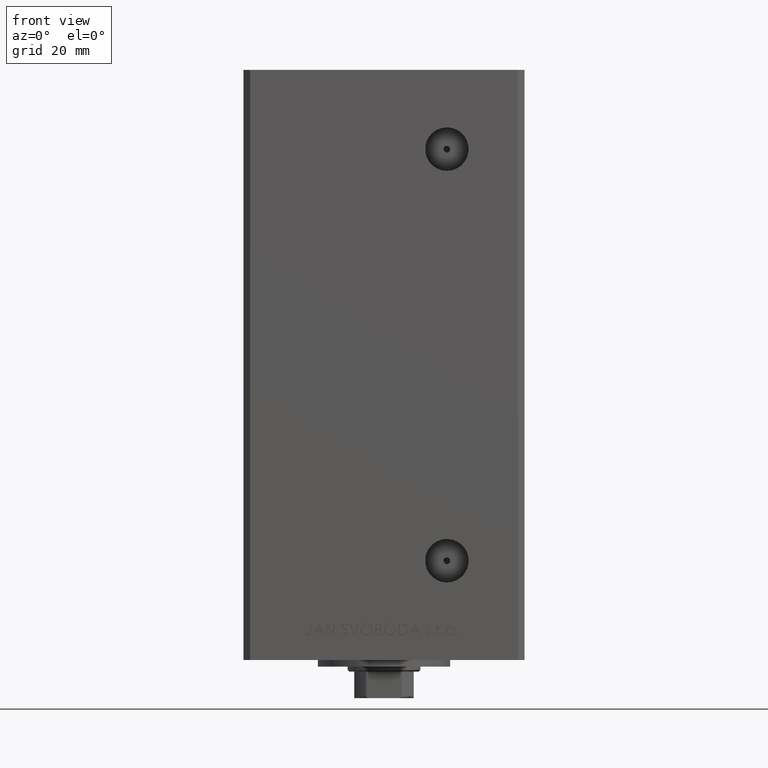
[diagram: clean part render]
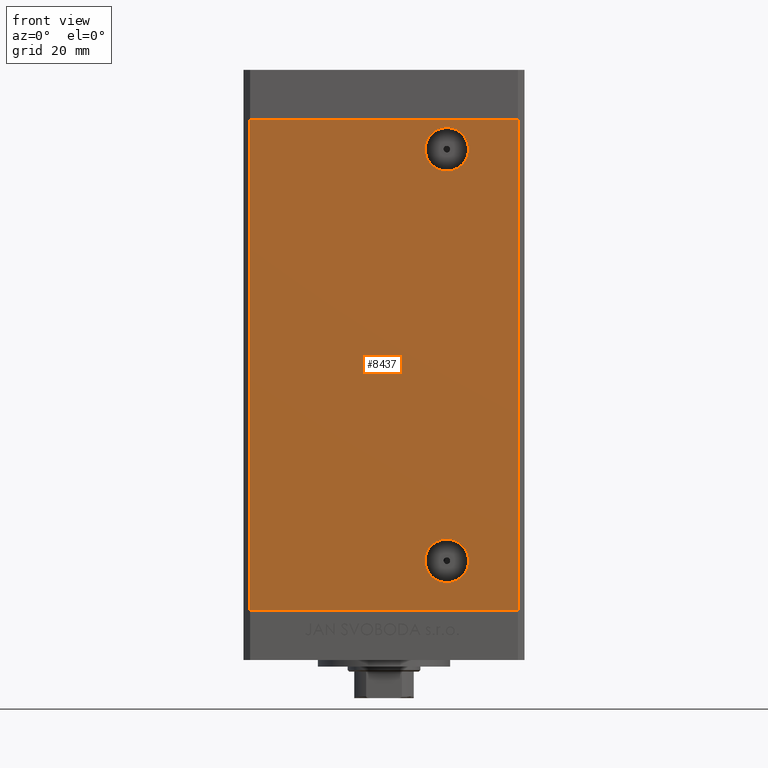
[diagram: same view with one face highlighted and labeled with its STEP entity id]
A machine part, front view. The second image highlights one B-rep face of the part: STEP entity #8437.
In plain terms, the highlighted planar face has unit normal (0, 1, 0).
Its self-contained STEP definition (entity closure, byte-faithful):
#414 = CIRCLE ( 'NONE', #12471, 6.580000000000002736 ) ;
#844 = LINE ( 'NONE', #16159, #16076 ) ;
#1201 = VECTOR ( 'NONE', #41686, 1000.000000000000000 ) ;
#1586 = ORIENTED_EDGE ( 'NONE', *, *, #8977, .F. ) ;
#2355 = AXIS2_PLACEMENT_3D ( 'NONE', #28119, #40413, #16530 ) ;
#2730 = CARTESIAN_POINT ( 'NONE',  ( -40.49999999999998579, -37.50000000000000711, 148.5000000000000000 ) ) ;
#3451 = EDGE_CURVE ( 'NONE', #41971, #46826, #24349, .T. ) ;
#4008 = ORIENTED_EDGE ( 'NONE', *, *, #27467, .T. ) ;
#4685 = EDGE_CURVE ( 'NONE', #25407, #29638, #49515, .T. ) ;
#4860 = ORIENTED_EDGE ( 'NONE', *, *, #27617, .T. ) ;
#5811 = EDGE_CURVE ( 'NONE', #25407, #14091, #33892, .T. ) ;
#6314 = CARTESIAN_POINT ( 'NONE',  ( 18.99999999999997513, -37.50000000000000711, 139.4999999999999716 ) ) ;
#7913 = DIRECTION ( 'NONE',  ( 0.000000000000000000, 0.000000000000000000, -1.000000000000000000 ) ) ;
#8437 = ADVANCED_FACE ( 'NONE', ( #40131, #33094, #21028 ), #48168, .F. ) ;
#8457 = CARTESIAN_POINT ( 'NONE',  ( 40.49999999999998579, -37.50000000000000711, 0.000000000000000000 ) ) ;
#8636 = CARTESIAN_POINT ( 'NONE',  ( 40.49999999999998579, -37.50000000000000711, 148.5000000000000000 ) ) ;
#8977 = EDGE_CURVE ( 'NONE', #14091, #15351, #46306, .T. ) ;
#11166 = CARTESIAN_POINT ( 'NONE',  ( -40.49999999999998579, -37.50000000000000711, 148.5000000000000000 ) ) ;
#12471 = AXIS2_PLACEMENT_3D ( 'NONE', #6314, #25665, #21639 ) ;
#13136 = CARTESIAN_POINT ( 'NONE',  ( 18.99999999999997513, -37.50000000000000711, 132.9199999999999875 ) ) ;
#13599 = DIRECTION ( 'NONE',  ( 0.000000000000000000, -1.000000000000000000, 0.000000000000000000 ) ) ;
#14091 = VERTEX_POINT ( 'NONE', #8636 ) ;
#15086 = DIRECTION ( 'NONE',  ( -0.000000000000000000, -0.000000000000000000, -1.000000000000000000 ) ) ;
#15351 = VERTEX_POINT ( 'NONE', #8457 ) ;
#16076 = VECTOR ( 'NONE', #31518, 1000.000000000000000 ) ;
#16159 = CARTESIAN_POINT ( 'NONE',  ( -40.49999999999998579, -37.50000000000000711, 0.000000000000000000 ) ) ;
#16530 = DIRECTION ( 'NONE',  ( 0.000000000000000000, 0.000000000000000000, -1.000000000000000000 ) ) ;
#17065 = ORIENTED_EDGE ( 'NONE', *, *, #4685, .T. ) ;
#17976 = DIRECTION ( 'NONE',  ( 0.000000000000000000, 1.000000000000000000, 0.000000000000000000 ) ) ;
#19208 = DIRECTION ( 'NONE',  ( -0.000000000000000000, 1.000000000000000000, -0.000000000000000000 ) ) ;
#19891 = EDGE_LOOP ( 'NONE', ( #4008, #35917 ) ) ;
#21001 = EDGE_CURVE ( 'NONE', #46826, #41971, #24026, .T. ) ;
#21028 = FACE_BOUND ( 'NONE', #19891, .T. ) ;
#21639 = DIRECTION ( 'NONE',  ( 0.000000000000000000, 0.000000000000000000, -1.000000000000000000 ) ) ;
#22780 = AXIS2_PLACEMENT_3D ( 'NONE', #28179, #13599, #47767 ) ;
#22797 = CARTESIAN_POINT ( 'NONE',  ( -40.49999999999998579, -37.50000000000000711, 0.000000000000000000 ) ) ;
#23440 = DIRECTION ( 'NONE',  ( -0.000000000000000000, -0.000000000000000000, -1.000000000000000000 ) ) ;
#24026 = CIRCLE ( 'NONE', #2355, 6.579999999999999183 ) ;
#24181 = CARTESIAN_POINT ( 'NONE',  ( 40.49999999999998579, -37.50000000000000711, 148.5000000000000000 ) ) ;
#24349 = CIRCLE ( 'NONE', #22780, 6.579999999999999183 ) ;
#25407 = VERTEX_POINT ( 'NONE', #11166 ) ;
#25665 = DIRECTION ( 'NONE',  ( -0.000000000000000000, 1.000000000000000000, -0.000000000000000000 ) ) ;
#26537 = AXIS2_PLACEMENT_3D ( 'NONE', #34301, #19208, #7913 ) ;
#27467 = EDGE_CURVE ( 'NONE', #35630, #36218, #42578, .T. ) ;
#27617 = EDGE_CURVE ( 'NONE', #29638, #15351, #844, .T. ) ;
#28119 = CARTESIAN_POINT ( 'NONE',  ( 18.99999999999998934, -37.50000000000000711, 14.99999999999998579 ) ) ;
#28179 = CARTESIAN_POINT ( 'NONE',  ( 18.99999999999998934, -37.50000000000000711, 14.99999999999998579 ) ) ;
#29638 = VERTEX_POINT ( 'NONE', #22797 ) ;
#30197 = ORIENTED_EDGE ( 'NONE', *, *, #3451, .F. ) ;
#31518 = DIRECTION ( 'NONE',  ( 1.000000000000000000, 0.000000000000000000, 0.000000000000000000 ) ) ;
#33094 = FACE_OUTER_BOUND ( 'NONE', #45994, .T. ) ;
#33194 = ORIENTED_EDGE ( 'NONE', *, *, #5811, .F. ) ;
#33255 = VECTOR ( 'NONE', #23440, 1000.000000000000000 ) ;
#33892 = LINE ( 'NONE', #2730, #1201 ) ;
#34152 = CARTESIAN_POINT ( 'NONE',  ( 18.99999999999998934, -37.50000000000000711, 8.419999999999985718 ) ) ;
#34301 = CARTESIAN_POINT ( 'NONE',  ( 18.99999999999997513, -37.50000000000000711, 139.4999999999999716 ) ) ;
#34443 = CARTESIAN_POINT ( 'NONE',  ( -40.49999999999998579, -37.50000000000000711, 148.5000000000000000 ) ) ;
#35630 = VERTEX_POINT ( 'NONE', #13136 ) ;
#35917 = ORIENTED_EDGE ( 'NONE', *, *, #38904, .T. ) ;
#36218 = VERTEX_POINT ( 'NONE', #38367 ) ;
#36360 = CARTESIAN_POINT ( 'NONE',  ( -40.49999999999998579, -37.50000000000000711, 148.5000000000000000 ) ) ;
#37206 = ORIENTED_EDGE ( 'NONE', *, *, #21001, .F. ) ;
#38367 = CARTESIAN_POINT ( 'NONE',  ( 18.99999999999997513, -37.50000000000000711, 146.0799999999999841 ) ) ;
#38904 = EDGE_CURVE ( 'NONE', #36218, #35630, #414, .T. ) ;
#39659 = VECTOR ( 'NONE', #15086, 1000.000000000000000 ) ;
#40131 = FACE_BOUND ( 'NONE', #47568, .T. ) ;
#40413 = DIRECTION ( 'NONE',  ( 0.000000000000000000, -1.000000000000000000, 0.000000000000000000 ) ) ;
#41686 = DIRECTION ( 'NONE',  ( 1.000000000000000000, 0.000000000000000000, 0.000000000000000000 ) ) ;
#41971 = VERTEX_POINT ( 'NONE', #34152 ) ;
#42578 = CIRCLE ( 'NONE', #26537, 6.580000000000002736 ) ;
#43437 = CARTESIAN_POINT ( 'NONE',  ( 18.99999999999998934, -37.50000000000000711, 21.57999999999998408 ) ) ;
#44888 = DIRECTION ( 'NONE',  ( 0.000000000000000000, -0.000000000000000000, 1.000000000000000000 ) ) ;
#45994 = EDGE_LOOP ( 'NONE', ( #4860, #1586, #33194, #17065 ) ) ;
#46083 = AXIS2_PLACEMENT_3D ( 'NONE', #36360, #17976, #44888 ) ;
#46306 = LINE ( 'NONE', #24181, #33255 ) ;
#46826 = VERTEX_POINT ( 'NONE', #43437 ) ;
#47568 = EDGE_LOOP ( 'NONE', ( #30197, #37206 ) ) ;
#47767 = DIRECTION ( 'NONE',  ( 0.000000000000000000, 0.000000000000000000, -1.000000000000000000 ) ) ;
#48168 = PLANE ( 'NONE',  #46083 ) ;
#49515 = LINE ( 'NONE', #34443, #39659 ) ;